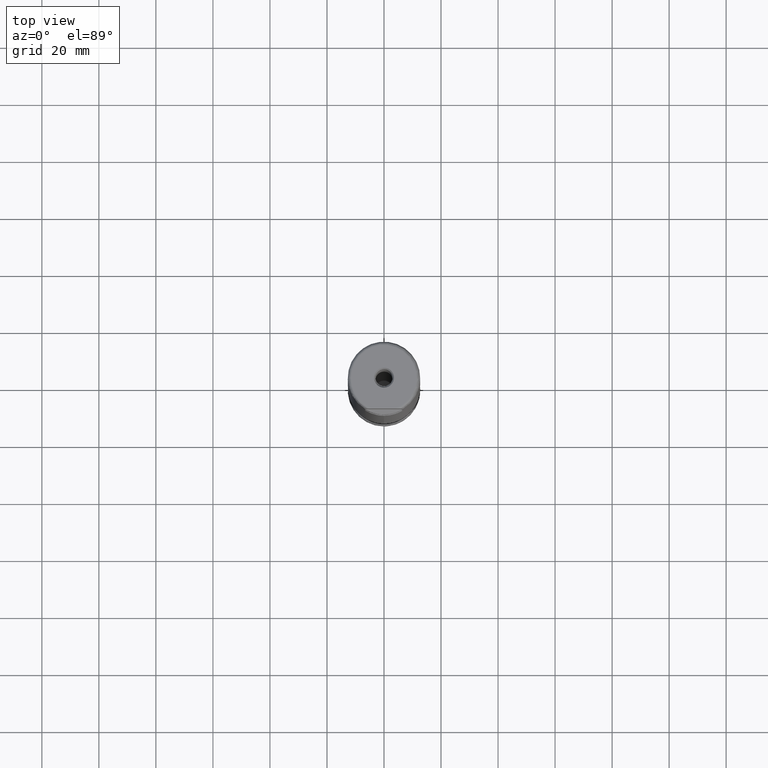
[diagram: clean part render]
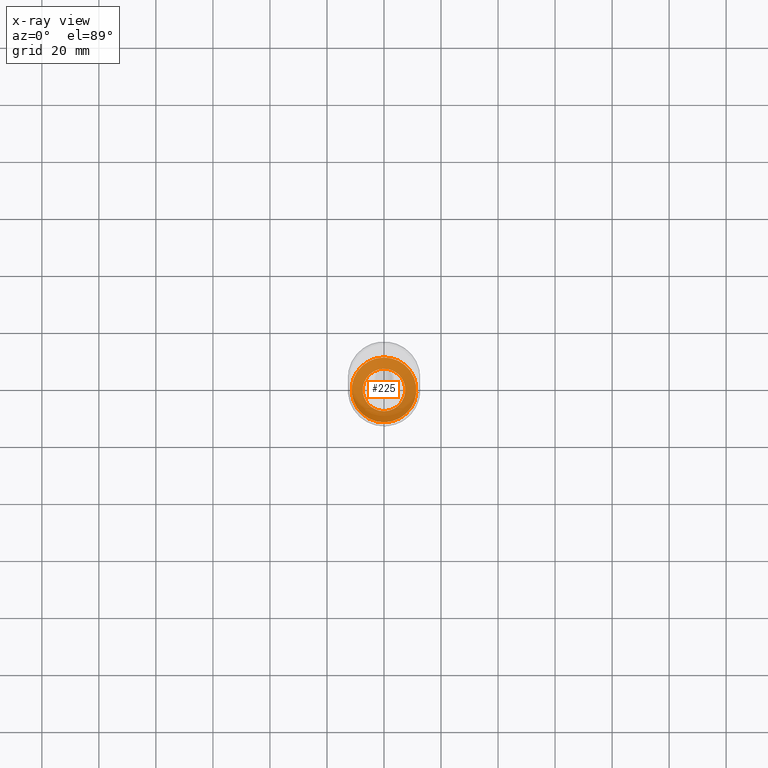
[diagram: x-ray — body ghosted, one internal face saturated and labeled with its STEP entity id]
A machine part, top view, then the same camera in x-ray: the body is ghosted and one INTERNAL B-rep face — a face not visible from any outside direction — is saturated and labeled: STEP entity #225.
In plain terms, the highlighted face is a SurfaceOfRevolution surface.
Its self-contained STEP definition (entity closure, byte-faithful):
#113=SURFACE_OF_REVOLUTION('',#798,#134);
#134=AXIS1_PLACEMENT('',#1548,#1030);
#225=ADVANCED_FACE('',(#336,#337),#113,.F.);
#336=FACE_BOUND('',#426,.T.);
#337=FACE_BOUND('',#427,.T.);
#426=EDGE_LOOP('',(#562));
#427=EDGE_LOOP('',(#563));
#562=ORIENTED_EDGE('',*,*,#706,.T.);
#563=ORIENTED_EDGE('',*,*,#707,.F.);
#638=VERTEX_POINT('',#1521);
#639=VERTEX_POINT('',#1535);
#706=EDGE_CURVE('',#638,#638,#748,.T.);
#707=EDGE_CURVE('',#639,#639,#749,.T.);
#748=CIRCLE('',#870,11.3582346503366);
#749=CIRCLE('',#871,7.46198423984085);
#798=B_SPLINE_CURVE_WITH_KNOTS('',3,(#1536,#1537,#1538,#1539,#1540,#1541,
#1542,#1543,#1544,#1545,#1546,#1547),.UNSPECIFIED.,.F.,.F.,(4,1,1,1,1,1,
1,1,1,4),(0.,0.221418157861957,0.365983083750147,0.510548009638337,0.655112935526527,
0.799677861414718,0.871960324358813,0.90810155583086,0.944242787302908,
1.),.UNSPECIFIED.);
#870=AXIS2_PLACEMENT_3D('',#1520,#1025,#1026);
#871=AXIS2_PLACEMENT_3D('',#1534,#1028,#1029);
#1025=DIRECTION('',(0.,1.17145536458252E-15,1.));
#1026=DIRECTION('',(0.,-1.,1.14546199038426E-15));
#1028=DIRECTION('',(0.,1.17145536458252E-15,1.));
#1029=DIRECTION('',(0.,-1.,1.16237412209665E-15));
#1030=DIRECTION('',(0.,1.17145536458252E-15,1.));
#1520=CARTESIAN_POINT('',(0.,8.56591029082361E-15,7.31219519736142));
#1521=CARTESIAN_POINT('',(0.,-11.3582346503366,7.31219519736143));
#1534=CARTESIAN_POINT('',(0.,6.03260540841171E-15,5.14966732049716));
#1535=CARTESIAN_POINT('',(0.,-7.46198423984084,5.14966732049717));
#1536=CARTESIAN_POINT('',(7.44263241348606,-0.537060364788832,5.14966761762804));
#1537=CARTESIAN_POINT('',(7.72479526063177,-0.536212608263279,5.319851776791));
#1538=CARTESIAN_POINT('',(8.19311667087047,-0.535379317988011,5.59795023877837));
#1539=CARTESIAN_POINT('',(8.85258000983731,-0.53608181685596,5.9752795548306));
#1540=CARTESIAN_POINT('',(9.41701626675732,-0.537992015684476,6.28827745402961));
#1541=CARTESIAN_POINT('',(9.98507463781776,-0.541048638881507,6.59465446465612));
#1542=CARTESIAN_POINT('',(10.4600893772582,-0.544035733592179,6.84691594980076));
#1543=CARTESIAN_POINT('',(10.7931240731429,-0.546571112455456,7.02251164122998));
#1544=CARTESIAN_POINT('',(10.98358384974,-0.547566911237371,7.12251655005486));
#1545=CARTESIAN_POINT('',(11.1525521368132,-0.550162765511046,7.21095305789321));
#1546=CARTESIAN_POINT('',(11.2730417300028,-0.535148863423146,7.27399070374262));
#1547=CARTESIAN_POINT('',(11.3460890887647,-0.52512547255068,7.31219519736142));
#1548=CARTESIAN_POINT('',(0.,0.,0.));